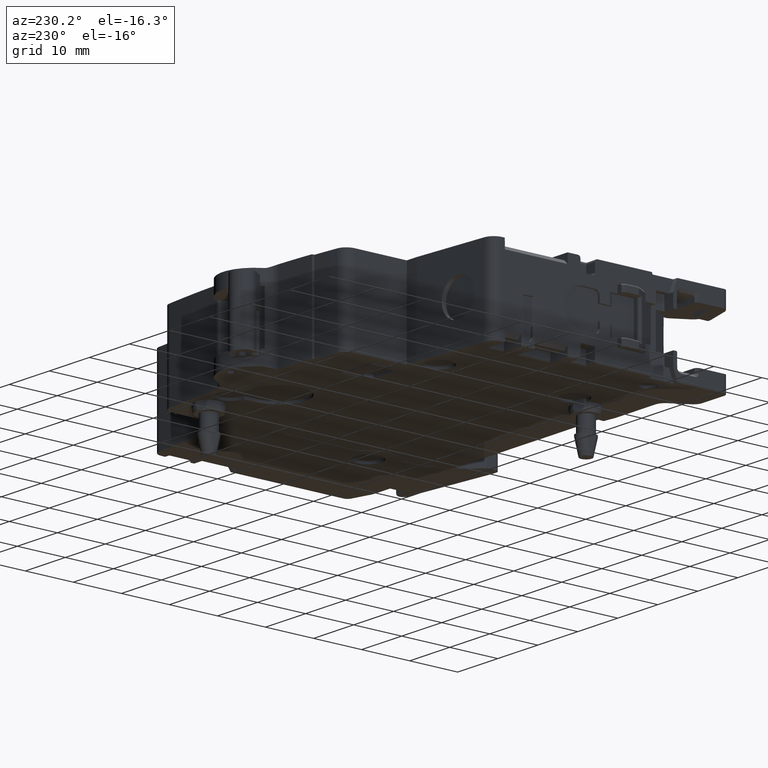
[diagram: clean part render]
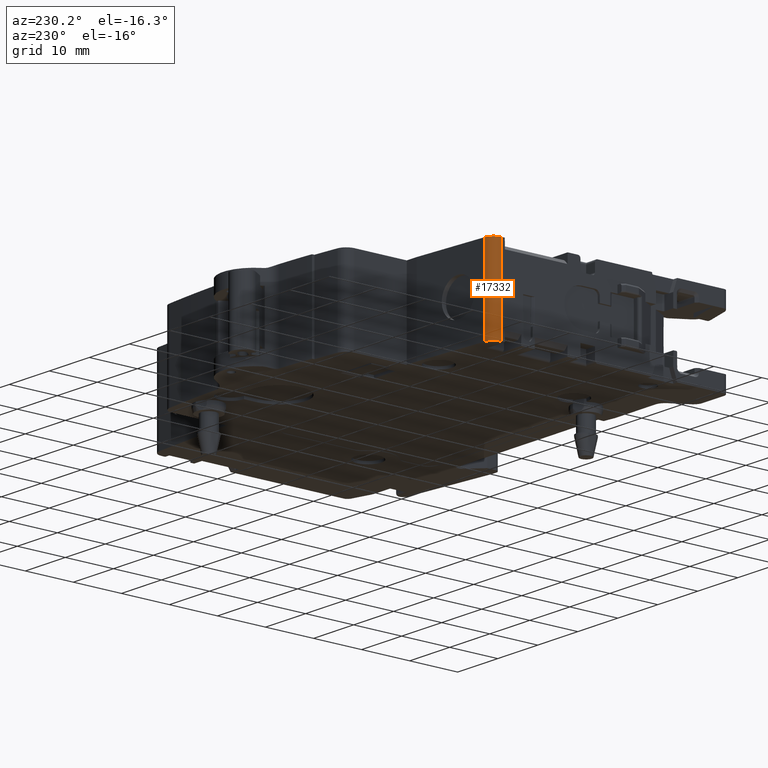
[diagram: same view with one face highlighted and labeled with its STEP entity id]
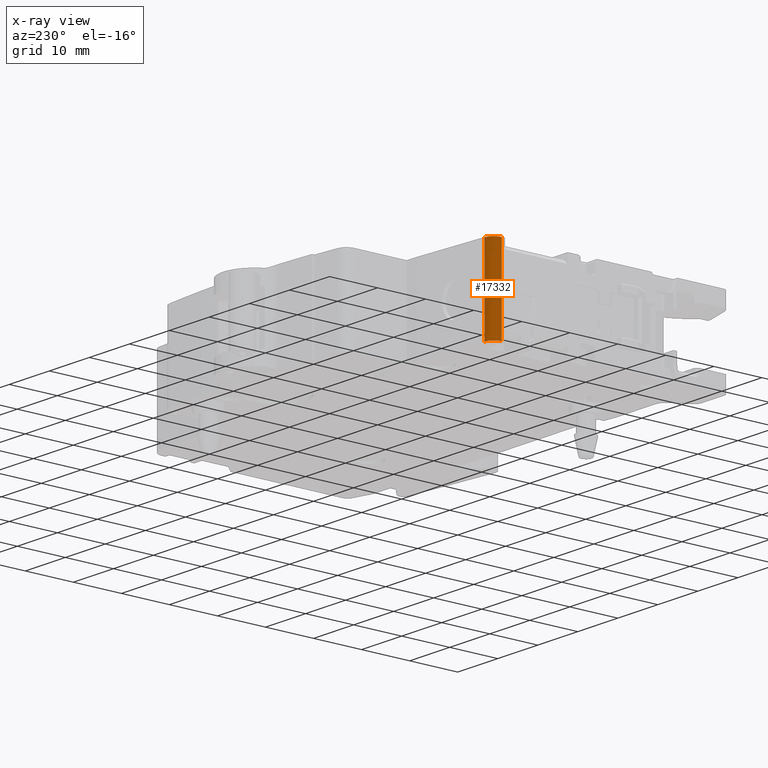
[diagram: x-ray of the same camera — body ghosted, the highlighted face saturated]
A machine part, auxiliary view. The second image highlights one B-rep face of the part: STEP entity #17332.
The next image is the same camera in x-ray: the body ghosted, the highlighted face saturated — about 0% of this face is hidden behind the body in this view.
In plain terms, the highlighted cylindrical surface (edge-blend (fillet) strip) has radius 2 mm, axis along (0, 0, -1).
Its self-contained STEP definition (entity closure, byte-faithful):
#2724=DIRECTION('',(0.E0,0.E0,1.E0));
#2725=VECTOR('',#2724,1.74E1);
#2726=CARTESIAN_POINT('',(-4.063951294749E1,4.490637871923E1,-8.7E0));
#2727=LINE('',#2726,#2725);
#2728=CARTESIAN_POINT('',(-4.05E1,4.291125061871E1,8.7E0));
#2729=DIRECTION('',(0.E0,0.E0,-1.E0));
#2730=DIRECTION('',(-1.E0,0.E0,0.E0));
#2731=AXIS2_PLACEMENT_3D('',#2728,#2729,#2730);
#2733=DIRECTION('',(0.E0,0.E0,-1.E0));
#2734=VECTOR('',#2733,1.74E1);
#2735=CARTESIAN_POINT('',(-4.25E1,4.291125061871E1,8.7E0));
#2736=LINE('',#2735,#2734);
#2737=CARTESIAN_POINT('',(-4.05E1,4.291125061871E1,-8.7E0));
#2738=DIRECTION('',(0.E0,0.E0,-1.E0));
#2739=DIRECTION('',(-1.E0,1.421085471520E-14,0.E0));
#2740=AXIS2_PLACEMENT_3D('',#2737,#2738,#2739);
#11744=CARTESIAN_POINT('',(-4.25E1,4.291125061871E1,-8.7E0));
#11745=CARTESIAN_POINT('',(-4.063951294749E1,4.490637871923E1,-8.7E0));
#11746=VERTEX_POINT('',#11744);
#11747=VERTEX_POINT('',#11745);
#13315=CARTESIAN_POINT('',(-4.25E1,4.291125061871E1,8.7E0));
#13316=CARTESIAN_POINT('',(-4.063951294749E1,4.490637871923E1,8.7E0));
#13317=VERTEX_POINT('',#13315);
#13318=VERTEX_POINT('',#13316);
#17320=CARTESIAN_POINT('',(-4.05E1,4.291125061871E1,1.809648E-2));
#17321=DIRECTION('',(0.E0,0.E0,-1.E0));
#17322=DIRECTION('',(-1.E0,0.E0,0.E0));
#17323=AXIS2_PLACEMENT_3D('',#17320,#17321,#17322);
#17324=CYLINDRICAL_SURFACE('',#17323,2.E0);
#17326=ORIENTED_EDGE('',*,*,#17325,.T.);
#17327=ORIENTED_EDGE('',*,*,#15804,.F.);
#17328=ORIENTED_EDGE('',*,*,#17195,.T.);
#17329=ORIENTED_EDGE('',*,*,#14853,.T.);
#17330=EDGE_LOOP('',(#17326,#17327,#17328,#17329));
#17331=FACE_OUTER_BOUND('',#17330,.F.);
#2732=CIRCLE('',#2731,2.E0);
#2741=CIRCLE('',#2740,2.E0);
#14853=EDGE_CURVE('',#11746,#11747,#2741,.T.);
#15804=EDGE_CURVE('',#13317,#13318,#2732,.T.);
#17195=EDGE_CURVE('',#13317,#11746,#2736,.T.);
#17325=EDGE_CURVE('',#11747,#13318,#2727,.T.);
#17332=ADVANCED_FACE('',(#17331),#17324,.T.);